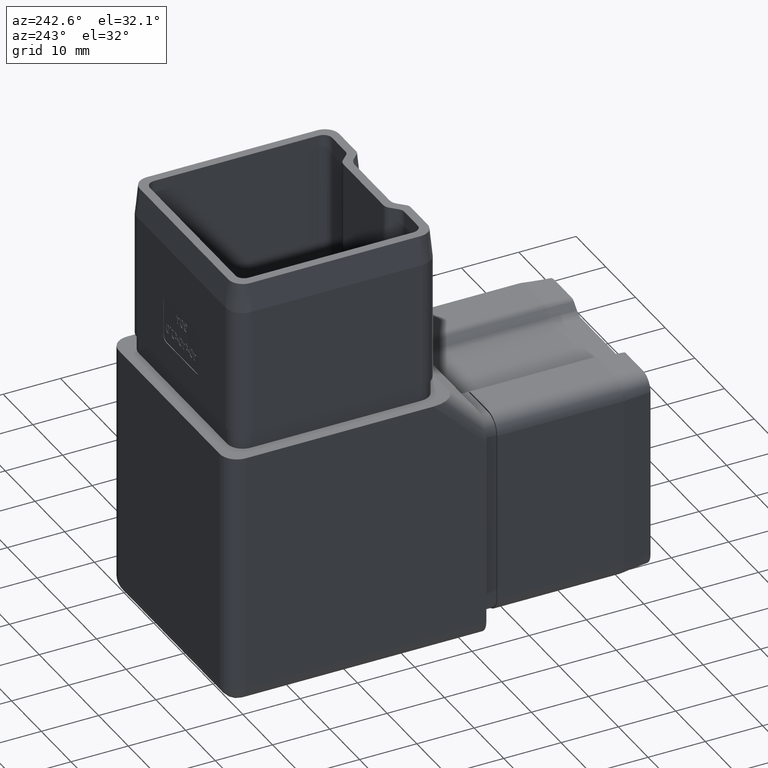
[diagram: clean part render]
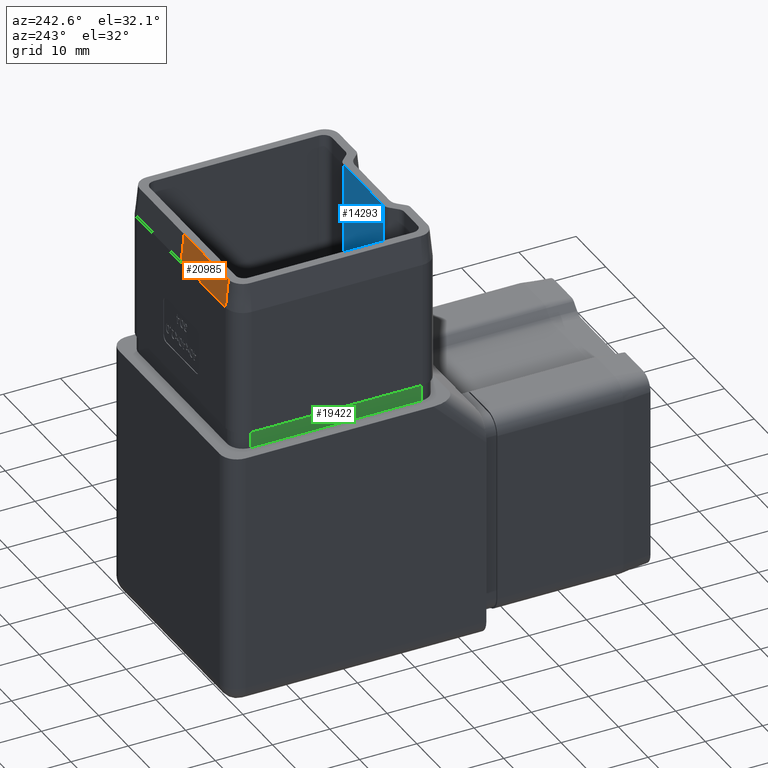
[diagram: same view with three faces highlighted in distinct colors, each labeled with its STEP entity id]
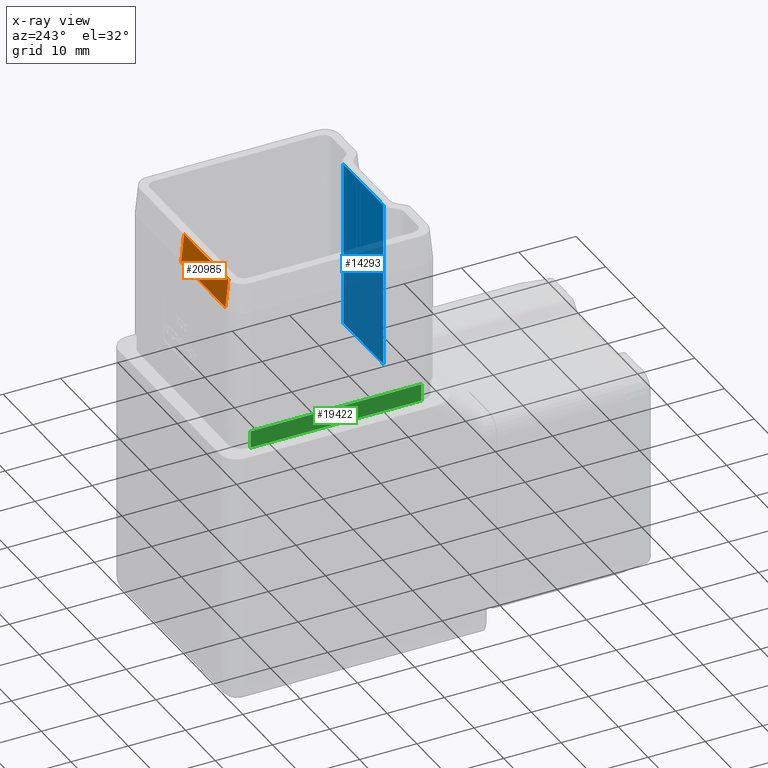
[diagram: x-ray of the same camera — body ghosted, the three highlighted faces saturated]
A machine part, auxiliary view with three faces highlighted in distinct colors.
The next image is the same camera in x-ray (body ghosted, the three faces saturated) — at least one of them is partly hidden behind the body in this view.
Their STEP definitions:

[orange] entity #20985 — the highlighted planar face has unit normal (0, -0.995, -0.0995).
#786 = DIRECTION ( 'NONE',  ( 0.0000000000000000000, -0.9950371902099891500, -0.09950371902099974800 ) ) ;
#2201 = CARTESIAN_POINT ( 'NONE',  ( 0.0000000000000000000, 20.23333333333332700, 49.16666666666666400 ) ) ;
#3116 = ORIENTED_EDGE ( 'NONE', *, *, #3234, .T. ) ;
#3146 = DIRECTION ( 'NONE',  ( 0.0000000000000000000, 0.09950371902099973400, -0.9950371902099890400 ) ) ;
#3234 = EDGE_CURVE ( 'NONE', #24994, #18784, #25545, .T. ) ;
#3348 = ORIENTED_EDGE ( 'NONE', *, *, #15283, .T. ) ;
#3352 = DIRECTION ( 'NONE',  ( 1.000000000000000000, 0.0000000000000000000, 0.0000000000000000000 ) ) ;
#3779 = VECTOR ( 'NONE', #22952, 1000.000000000000000 ) ;
#3948 = LINE ( 'NONE', #14688, #13266 ) ;
#4099 = CARTESIAN_POINT ( 'NONE',  ( -14.90000000000000700, 19.89999999999999500, 52.50000000000000000 ) ) ;
#4173 = ORIENTED_EDGE ( 'NONE', *, *, #8679, .F. ) ;
#5604 = EDGE_LOOP ( 'NONE', ( #14281, #3348, #3116, #4173 ) ) ;
#6048 = VERTEX_POINT ( 'NONE', #4099 ) ;
#7180 = CARTESIAN_POINT ( 'NONE',  ( -14.90000000000000400, 20.39999999999999500, 47.50000000000000000 ) ) ;
#8584 = CARTESIAN_POINT ( 'NONE',  ( -14.90000000000000700, 19.89999999999999500, 52.50000000000000000 ) ) ;
#8679 = EDGE_CURVE ( 'NONE', #21675, #18784, #21356, .T. ) ;
#9662 = CARTESIAN_POINT ( 'NONE',  ( 3.469446951953612600E-015, 19.89999999999999500, 52.50000000000000000 ) ) ;
#10779 = CARTESIAN_POINT ( 'NONE',  ( -3.469446951953614200E-015, 20.39999999999999500, 47.50000000000000000 ) ) ;
#12361 = CARTESIAN_POINT ( 'NONE',  ( -3.469446951953614200E-015, 20.39999999999999500, 47.50000000000000000 ) ) ;
#13266 = VECTOR ( 'NONE', #18845, 1000.000000000000200 ) ;
#14281 = ORIENTED_EDGE ( 'NONE', *, *, #19189, .F. ) ;
#14593 = AXIS2_PLACEMENT_3D ( 'NONE', #25496, #786, #3146 ) ;
#14688 = CARTESIAN_POINT ( 'NONE',  ( -14.90000000000000700, 19.89999999999999500, 52.50000000000000000 ) ) ;
#15283 = EDGE_CURVE ( 'NONE', #6048, #24994, #25938, .T. ) ;
#15872 = VECTOR ( 'NONE', #3352, 1000.000000000000000 ) ;
#18784 = VERTEX_POINT ( 'NONE', #10779 ) ;
#18845 = DIRECTION ( 'NONE',  ( 7.892444892078599600E-016, 0.09950371902099973400, -0.9950371902099890400 ) ) ;
#19189 = EDGE_CURVE ( 'NONE', #6048, #21675, #3948, .T. ) ;
#20985 = ADVANCED_FACE ( 'NONE', ( #22129 ), #21659, .F. ) ;
#21356 = LINE ( 'NONE', #21780, #15872 ) ;
#21659 = PLANE ( 'NONE',  #14593 ) ;
#21675 = VERTEX_POINT ( 'NONE', #7180 ) ;
#21780 = CARTESIAN_POINT ( 'NONE',  ( -14.90000000000000400, 20.39999999999999500, 47.50000000000000000 ) ) ;
#22129 = FACE_OUTER_BOUND ( 'NONE', #5604, .T. ) ;
#22589 = CARTESIAN_POINT ( 'NONE',  ( 0.0000000000000000000, 20.06666666666666300, 50.83333333333333600 ) ) ;
#22667 = CARTESIAN_POINT ( 'NONE',  ( 3.469446951953612600E-015, 19.89999999999999500, 52.50000000000000000 ) ) ;
#22952 = DIRECTION ( 'NONE',  ( 1.000000000000000000, 0.0000000000000000000, 0.0000000000000000000 ) ) ;
#24994 = VERTEX_POINT ( 'NONE', #9662 ) ;
#25496 = CARTESIAN_POINT ( 'NONE',  ( -14.90000000000000700, 19.89999999999999500, 52.50000000000000000 ) ) ;
#25545 = B_SPLINE_CURVE_WITH_KNOTS ( 'NONE', 3,
 ( #22667, #22589, #2201, #12361 ),
 .UNSPECIFIED., .F., .F.,
 ( 4, 4 ),
 ( 0.0000000000000000000, 1.000000000000000000 ),
 .UNSPECIFIED. ) ;
#25938 = LINE ( 'NONE', #8584, #3779 ) ;

[blue] entity #14293 — the highlighted planar face has unit normal (-0, 1, 0).
#259 = EDGE_LOOP ( 'NONE', ( #12156, #4390, #8372, #14212 ) ) ;
#930 = EDGE_CURVE ( 'NONE', #8013, #12097, #1392, .T. ) ;
#1392 = LINE ( 'NONE', #8405, #25814 ) ;
#2489 = CARTESIAN_POINT ( 'NONE',  ( 7.328427124746204900, -11.40000000000000000, 52.50000000000000000 ) ) ;
#2679 = CARTESIAN_POINT ( 'NONE',  ( 6.707106781186561200, -11.40000000000000000, 23.42304473782996200 ) ) ;
#2784 = CARTESIAN_POINT ( 'NONE',  ( 7.328427124746204900, -11.40000000000000000, 52.50000000000000000 ) ) ;
#3970 = VERTEX_POINT ( 'NONE', #19606 ) ;
#4390 = ORIENTED_EDGE ( 'NONE', *, *, #22688, .T. ) ;
#6549 = DIRECTION ( 'NONE',  ( -1.000000000000000000, -1.183557840207685800E-016, -1.183557840207689000E-016 ) ) ;
#6726 = CARTESIAN_POINT ( 'NONE',  ( -8.312179661587986000E-016, -11.40000000000000200, 23.42304473782996200 ) ) ;
#7345 = DIRECTION ( 'NONE',  ( -0.0000000000000000000, -0.0000000000000000000, 1.000000000000000000 ) ) ;
#8013 = VERTEX_POINT ( 'NONE', #8954 ) ;
#8372 = ORIENTED_EDGE ( 'NONE', *, *, #22242, .T. ) ;
#8405 = CARTESIAN_POINT ( 'NONE',  ( 6.707106781186561200, -11.40000000000000000, 52.50000000000000000 ) ) ;
#8543 = LINE ( 'NONE', #6726, #19175 ) ;
#8954 = CARTESIAN_POINT ( 'NONE',  ( 6.707106781186561200, -11.40000000000000000, 52.50000000000000000 ) ) ;
#9956 = VECTOR ( 'NONE', #11146, 1000.000000000000000 ) ;
#11146 = DIRECTION ( 'NONE',  ( 1.000000000000000000, 1.183557840207685800E-016, -0.0000000000000000000 ) ) ;
#11513 = CARTESIAN_POINT ( 'NONE',  ( -6.707106781186552300, -11.40000000000000200, 52.50000000000000000 ) ) ;
#12097 = VERTEX_POINT ( 'NONE', #2679 ) ;
#12156 = ORIENTED_EDGE ( 'NONE', *, *, #930, .T. ) ;
#12650 = DIRECTION ( 'NONE',  ( -1.183557840207685800E-016, 1.000000000000000000, 0.0000000000000000000 ) ) ;
#12873 = LINE ( 'NONE', #2784, #9956 ) ;
#14212 = ORIENTED_EDGE ( 'NONE', *, *, #15047, .T. ) ;
#14293 = ADVANCED_FACE ( 'NONE', ( #16939 ), #20826, .T. ) ;
#15047 = EDGE_CURVE ( 'NONE', #21078, #8013, #12873, .T. ) ;
#16775 = DIRECTION ( 'NONE',  ( 0.0000000000000000000, 0.0000000000000000000, -1.000000000000000000 ) ) ;
#16939 = FACE_OUTER_BOUND ( 'NONE', #259, .T. ) ;
#19175 = VECTOR ( 'NONE', #6549, 1000.000000000000000 ) ;
#19606 = CARTESIAN_POINT ( 'NONE',  ( -6.707106781186555900, -11.40000000000000200, 23.42304473782996200 ) ) ;
#19768 = CARTESIAN_POINT ( 'NONE',  ( -6.707106781186555900, -11.40000000000000200, 52.50000000000000000 ) ) ;
#20826 = PLANE ( 'NONE',  #26057 ) ;
#21078 = VERTEX_POINT ( 'NONE', #11513 ) ;
#21180 = DIRECTION ( 'NONE',  ( -1.000000000000000000, -1.183557840207685800E-016, 0.0000000000000000000 ) ) ;
#22097 = VECTOR ( 'NONE', #7345, 1000.000000000000000 ) ;
#22242 = EDGE_CURVE ( 'NONE', #3970, #21078, #24326, .T. ) ;
#22688 = EDGE_CURVE ( 'NONE', #12097, #3970, #8543, .T. ) ;
#24326 = LINE ( 'NONE', #19768, #22097 ) ;
#25814 = VECTOR ( 'NONE', #16775, 1000.000000000000000 ) ;
#26057 = AXIS2_PLACEMENT_3D ( 'NONE', #2489, #12650, #21180 ) ;

[green] entity #19422 — the highlighted planar face has unit normal (1, -0, 0).
#78 = DIRECTION ( 'NONE',  ( 1.164243943608596200E-016, 1.000000000000000000, 0.0000000000000000000 ) ) ;
#714 = FACE_OUTER_BOUND ( 'NONE', #3014, .T. ) ;
#1540 = ORIENTED_EDGE ( 'NONE', *, *, #23116, .T. ) ;
#3014 = EDGE_LOOP ( 'NONE', ( #17561, #7509, #1540, #24001 ) ) ;
#5613 = LINE ( 'NONE', #26296, #22339 ) ;
#6825 = LINE ( 'NONE', #13882, #21664 ) ;
#7509 = ORIENTED_EDGE ( 'NONE', *, *, #24977, .T. ) ;
#8409 = EDGE_CURVE ( 'NONE', #14013, #25657, #5613, .T. ) ;
#8881 = EDGE_CURVE ( 'NONE', #25657, #17430, #16185, .T. ) ;
#8979 = CARTESIAN_POINT ( 'NONE',  ( -17.60000000000000500, 17.39999999999997700, 25.50000000000000000 ) ) ;
#9838 = DIRECTION ( 'NONE',  ( 1.164243943608596200E-016, 1.000000000000000000, 0.0000000000000000000 ) ) ;
#10062 = CARTESIAN_POINT ( 'NONE',  ( -17.60000000000000500, 17.39999999999997700, 25.50000000000000000 ) ) ;
#10263 = CARTESIAN_POINT ( 'NONE',  ( -17.60000000000000900, -12.40000000000000400, 22.50000000000000000 ) ) ;
#13882 = CARTESIAN_POINT ( 'NONE',  ( -17.60000000000000900, -12.40000000000000400, 25.50000000000000000 ) ) ;
#13954 = DIRECTION ( 'NONE',  ( 1.164243943608596200E-016, 1.000000000000000000, 0.0000000000000000000 ) ) ;
#14013 = VERTEX_POINT ( 'NONE', #24354 ) ;
#15767 = CARTESIAN_POINT ( 'NONE',  ( -17.60000000000000900, -12.40000000000000400, 25.50000000000000000 ) ) ;
#16185 = LINE ( 'NONE', #18625, #17149 ) ;
#16383 = DIRECTION ( 'NONE',  ( 0.0000000000000000000, -0.0000000000000000000, -1.000000000000000000 ) ) ;
#17149 = VECTOR ( 'NONE', #78, 1000.000000000000000 ) ;
#17430 = VERTEX_POINT ( 'NONE', #21167 ) ;
#17561 = ORIENTED_EDGE ( 'NONE', *, *, #8409, .F. ) ;
#18625 = CARTESIAN_POINT ( 'NONE',  ( -17.60000000000000900, -12.40000000000000400, 22.50000000000000000 ) ) ;
#19422 = ADVANCED_FACE ( 'NONE', ( #714 ), #20276, .F. ) ;
#19427 = AXIS2_PLACEMENT_3D ( 'NONE', #15767, #22161, #9838 ) ;
#20276 = PLANE ( 'NONE',  #19427 ) ;
#20965 = VERTEX_POINT ( 'NONE', #8979 ) ;
#21083 = VECTOR ( 'NONE', #26496, 1000.000000000000000 ) ;
#21167 = CARTESIAN_POINT ( 'NONE',  ( -17.60000000000000500, 17.39999999999997700, 22.50000000000000000 ) ) ;
#21664 = VECTOR ( 'NONE', #13954, 1000.000000000000000 ) ;
#22161 = DIRECTION ( 'NONE',  ( 1.000000000000000000, -1.164243943608596200E-016, 0.0000000000000000000 ) ) ;
#22339 = VECTOR ( 'NONE', #16383, 1000.000000000000000 ) ;
#23116 = EDGE_CURVE ( 'NONE', #20965, #17430, #24599, .T. ) ;
#24001 = ORIENTED_EDGE ( 'NONE', *, *, #8881, .F. ) ;
#24354 = CARTESIAN_POINT ( 'NONE',  ( -17.60000000000000900, -12.40000000000000400, 25.50000000000000000 ) ) ;
#24599 = LINE ( 'NONE', #10062, #21083 ) ;
#24977 = EDGE_CURVE ( 'NONE', #14013, #20965, #6825, .T. ) ;
#25657 = VERTEX_POINT ( 'NONE', #10263 ) ;
#26296 = CARTESIAN_POINT ( 'NONE',  ( -17.60000000000000900, -12.40000000000000400, 25.50000000000000000 ) ) ;
#26496 = DIRECTION ( 'NONE',  ( 0.0000000000000000000, -0.0000000000000000000, -1.000000000000000000 ) ) ;